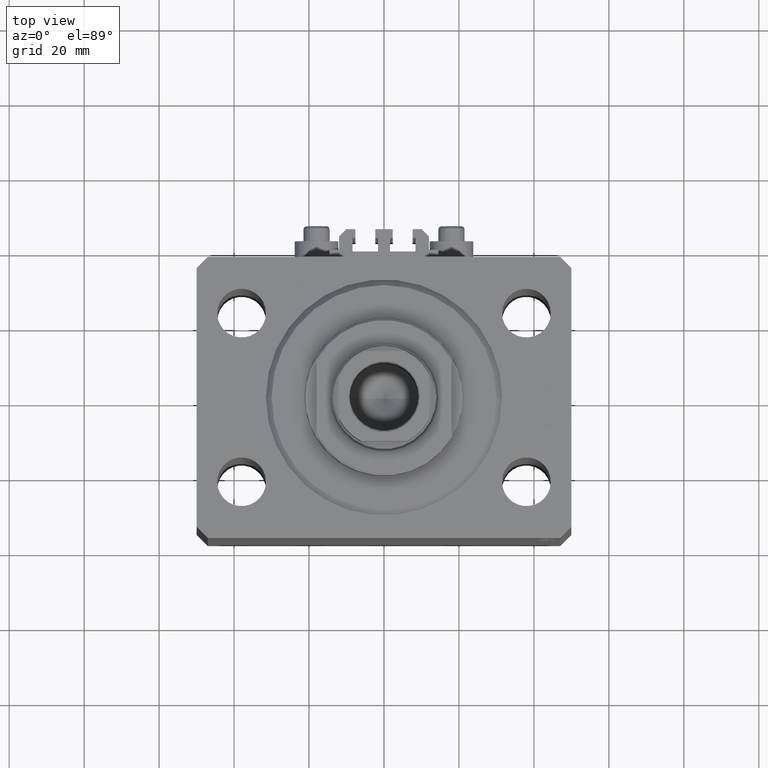
[diagram: clean part render]
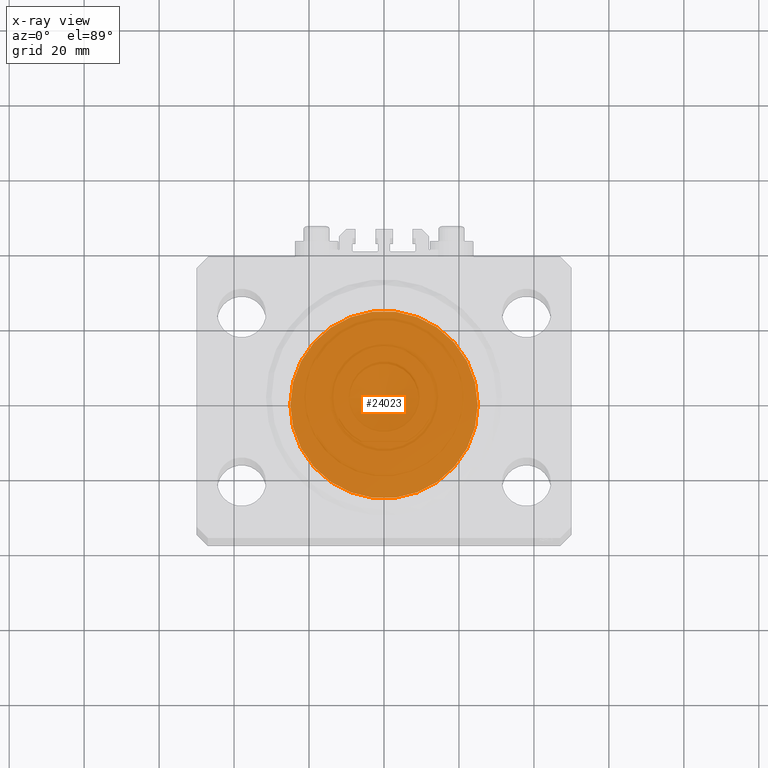
[diagram: x-ray — body ghosted, one internal face saturated and labeled with its STEP entity id]
A machine part, top view, then the same camera in x-ray: the body is ghosted and one INTERNAL B-rep face — a face not visible from any outside direction — is saturated and labeled: STEP entity #24023.
In plain terms, the highlighted planar face has unit normal (0, 0, 1).
Its self-contained STEP definition (entity closure, byte-faithful):
#120 = DIRECTION ( 'NONE',  ( 1.000000000000000000, 0.000000000000000000, 0.000000000000000000 ) ) ;
#4406 = EDGE_CURVE ( 'NONE', #28835, #37947, #33402, .T. ) ;
#10868 = EDGE_LOOP ( 'NONE', ( #35572, #22596 ) ) ;
#11326 = DIRECTION ( 'NONE',  ( 0.000000000000000000, 0.000000000000000000, 1.000000000000000000 ) ) ;
#13287 = CIRCLE ( 'NONE', #20927, 25.00000000000000000 ) ;
#20927 = AXIS2_PLACEMENT_3D ( 'NONE', #45808, #46046, #31199 ) ;
#22185 = AXIS2_PLACEMENT_3D ( 'NONE', #44118, #11326, #30001 ) ;
#22596 = ORIENTED_EDGE ( 'NONE', *, *, #4406, .F. ) ;
#24023 = ADVANCED_FACE ( 'NONE', ( #29525 ), #36712, .F. ) ;
#24558 = CARTESIAN_POINT ( 'NONE',  ( 0.000000000000000000, 0.000000000000000000, 0.000000000000000000 ) ) ;
#28247 = CARTESIAN_POINT ( 'NONE',  ( 25.00000000000000000, 3.061616997868383043E-15, 0.000000000000000000 ) ) ;
#28835 = VERTEX_POINT ( 'NONE', #28247 ) ;
#29183 = EDGE_CURVE ( 'NONE', #37947, #28835, #13287, .T. ) ;
#29525 = FACE_OUTER_BOUND ( 'NONE', #10868, .T. ) ;
#30001 = DIRECTION ( 'NONE',  ( 1.000000000000000000, 0.000000000000000000, -0.000000000000000000 ) ) ;
#31199 = DIRECTION ( 'NONE',  ( 1.000000000000000000, 0.000000000000000000, 0.000000000000000000 ) ) ;
#33402 = CIRCLE ( 'NONE', #37202, 25.00000000000000000 ) ;
#35572 = ORIENTED_EDGE ( 'NONE', *, *, #29183, .F. ) ;
#36712 = PLANE ( 'NONE',  #22185 ) ;
#37202 = AXIS2_PLACEMENT_3D ( 'NONE', #24558, #39151, #120 ) ;
#37947 = VERTEX_POINT ( 'NONE', #46080 ) ;
#39151 = DIRECTION ( 'NONE',  ( 0.000000000000000000, 0.000000000000000000, 1.000000000000000000 ) ) ;
#44118 = CARTESIAN_POINT ( 'NONE',  ( 0.000000000000000000, 0.000000000000000000, 0.000000000000000000 ) ) ;
#45808 = CARTESIAN_POINT ( 'NONE',  ( 0.000000000000000000, 0.000000000000000000, 0.000000000000000000 ) ) ;
#46046 = DIRECTION ( 'NONE',  ( 0.000000000000000000, 0.000000000000000000, 1.000000000000000000 ) ) ;
#46080 = CARTESIAN_POINT ( 'NONE',  ( -25.00000000000000000, 0.000000000000000000, 0.000000000000000000 ) ) ;